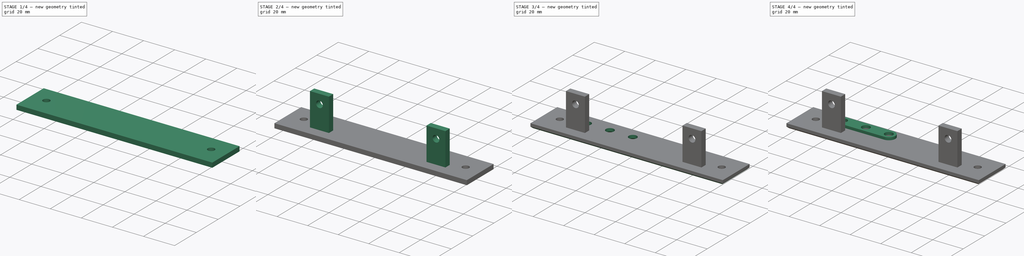
[diagram: build sequence overview — one tinted view per stage of 4, left to right]
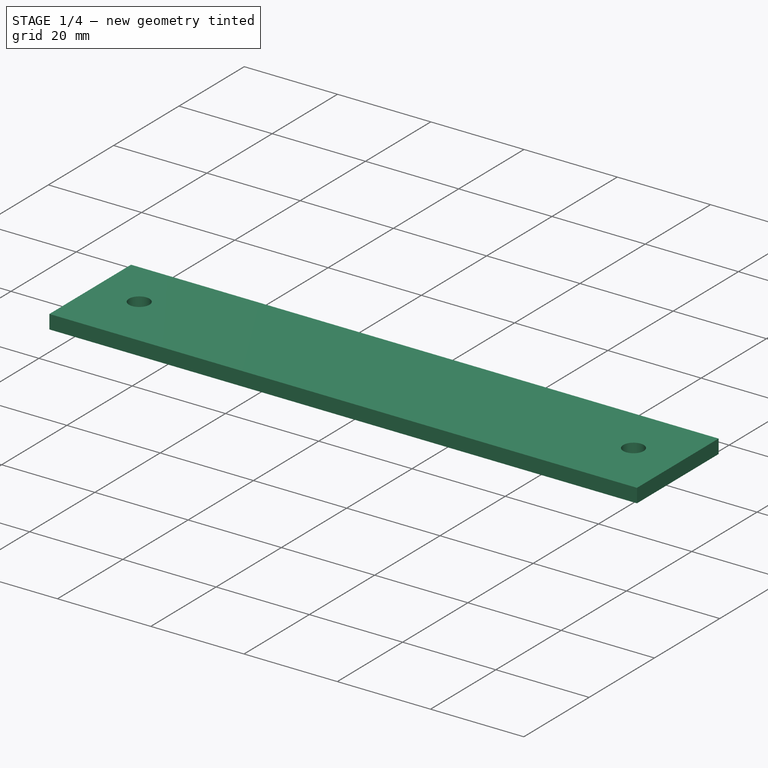
[diagram: stage 1 of 4 — iso view after this stage's code; geometry added in this stage tinted green]
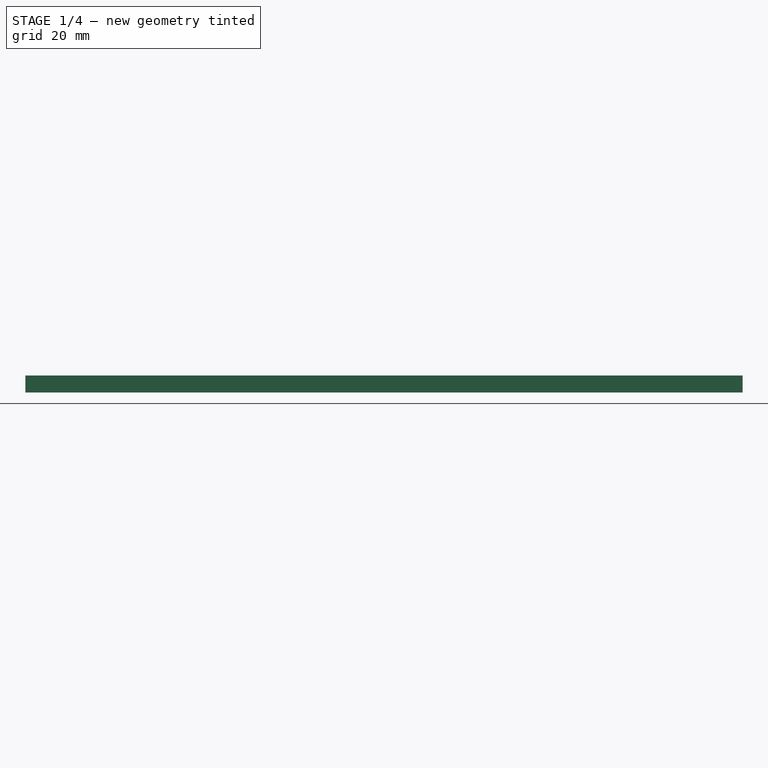
[diagram: stage 1 of 4 — front view after this stage's code; geometry added in this stage tinted green]
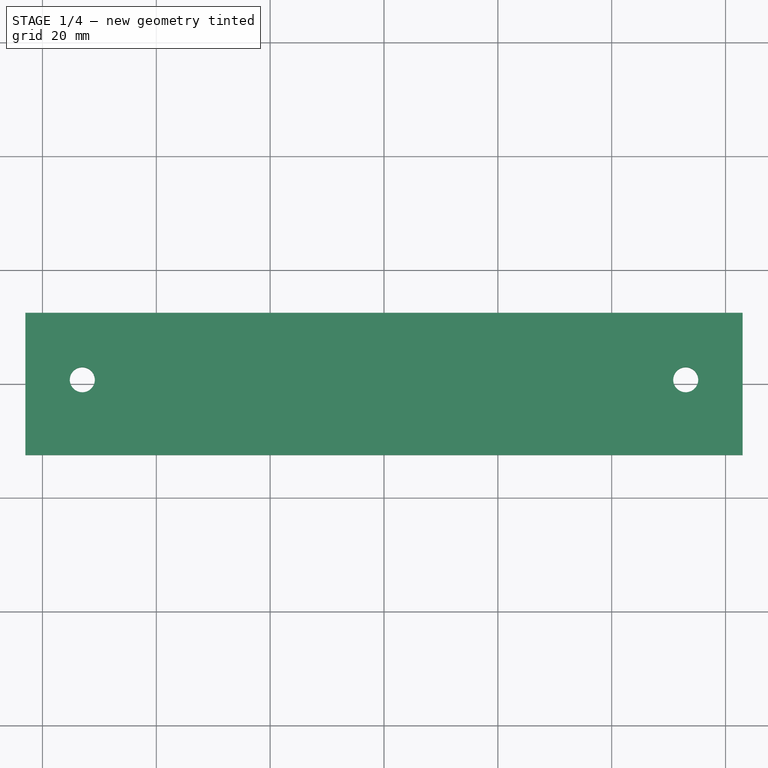
[diagram: stage 1 of 4 — top view after this stage's code; geometry added in this stage tinted green]
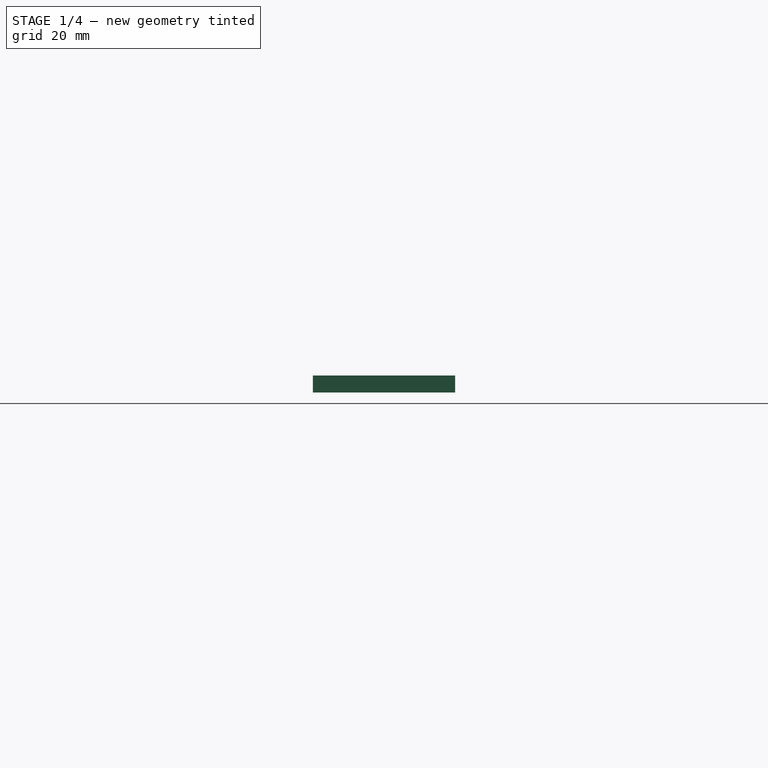
[diagram: stage 1 of 4 — right view after this stage's code; geometry added in this stage tinted green]
FCSTD DOCUMENT  (FreeCAD 0.17R13522 (Git))
Label: Status Plate
License: All rights reserved
LicenseURL: http://en.wikipedia.org/wiki/All_rights_reserved
objects: Sketcher::SketchObject×5, PartDesign::Pad×3, PartDesign::Pocket×2, PartDesign::Chamfer×2, PartDesign::Mirrored×1, PartDesign::Body×1, App::Part×1, Part::Part2DObjectPython×1, Part::Extrusion×1, Part::Cut×1
note: 22 computed .brp shape members not serialized (recipe doc carries the construction recipe); baked Part::Feature solids carry a one-line shape summary decoded from their .brp

FEATURE [Sketcher::SketchObject] Sketch  label="Faceplate"
  MapMode = 5
  Support = -> [XY_Plane001]
  sketch-geometry (6):
    g0: LineSegment StartX=-63 StartY=12.5 StartZ=0 EndX=63 EndY=12.5 EndZ=0
    g1: LineSegment StartX=63 StartY=12.5 StartZ=0 EndX=63 EndY=-12.5 EndZ=0
    g2: LineSegment StartX=63 StartY=-12.5 StartZ=0 EndX=-63 EndY=-12.5 EndZ=0
    g3: LineSegment StartX=-63 StartY=-12.5 StartZ=0 EndX=-63 EndY=12.5 EndZ=0
    g4: Circle CenterX=-53 CenterY=0.726 CenterZ=0 NormalX=0 NormalY=0 NormalZ=1 AngleXU=0 Radius=2.2
    g5: Circle CenterX=53 CenterY=0.726 CenterZ=0 NormalX=0 NormalY=0 NormalZ=1 AngleXU=0 Radius=2.2
  constraints (17):
    c: Coincident(g0,g1)
    c: Coincident(g1,g2)
    c: Coincident(g2,g3)
    c: Coincident(g3,g0)
    c: Horizontal(g0)
    c: Horizontal(g2)
    c: Vertical(g1)
    c: Vertical(g3)
    c: Distance(g3) = 25
    c: Distance(g0) = 126
    c: Symmetric(g0,g0,g-2)
    c: Symmetric(g0,g2,g-1)
    c: Equal(g5,g4)
    c: Radius(g4) = 2.2
    c: Symmetric(g4,g5,g-2)
    c: DistanceY(g0,g4) = -11.774
    c: DistanceX(g4,g0) = -10
FEATURE [PartDesign::Pad] Pad  label="Make Plate"
  Length = 3
  Length2 = 100
  Profile = -> Sketch
  Type = 0
FEATURE [PartDesign::Body] ChamferBody
  Group = -> [Sketch,Pad,Sketch001,Pad001,Sketch002,Pocket,Mirrored,Chamfer,Sketch003,Pocket001,Chamfer001,Sketch004,Pad002]
  Origin = -> Origin001
  Tip = -> Pad002
FEATURE [App::Part] Part
  Group = -> [ChamferBody]
  License = CC BY 3.0
  LicenseURL = http://creativecommons.org/licenses/by/3.0/
  Origin = -> Origin
FEATURE [Part::Part2DObjectPython] ShapeString  # Draft 2D object (typed FeaturePython)
  FontFile = <userpath>/USERROOT/Fonts/impact.ttf
  Placement = pos=(46.5,-8.5,0) rot=(0,1,0;3.14159rad)
  Size = 7.13
  String =  ToE 65C02   P    N     I
  Tracking = 0.75
FEATURE [Part::Extrusion] Extrude
  Base = -> ShapeString
  Dir = (0,0,-1)
  DirMode = 2
  FaceMakerClass = Part::FaceMakerBullseye
  LengthFwd = 1
  LengthRev = 0
  Placement = pos=(0,0,1) rot=(0,0,1;0rad)
  Solid = false
  Symmetric = false
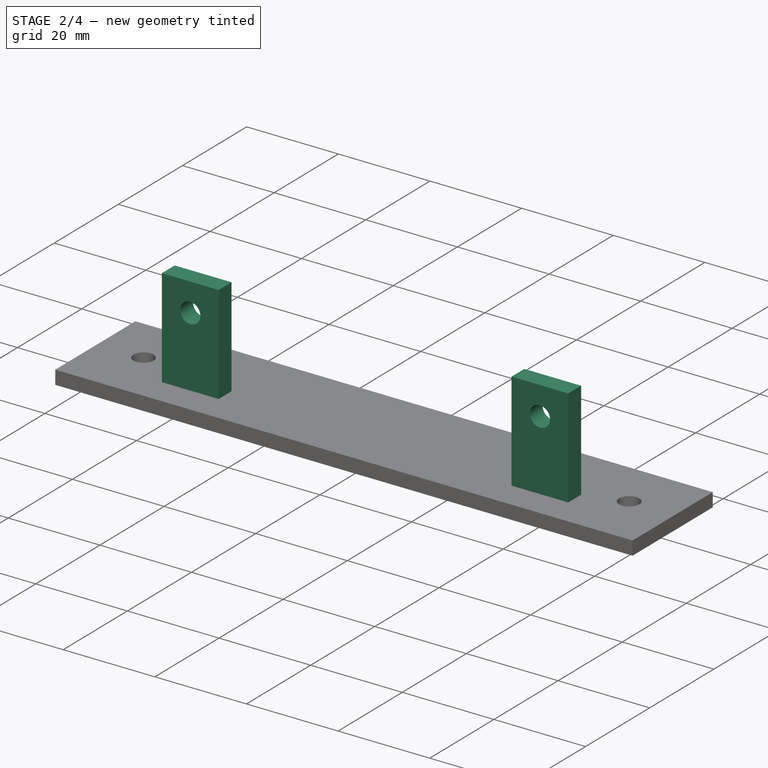
[diagram: stage 2 of 4 — iso view after this stage's code; geometry added in this stage tinted green]
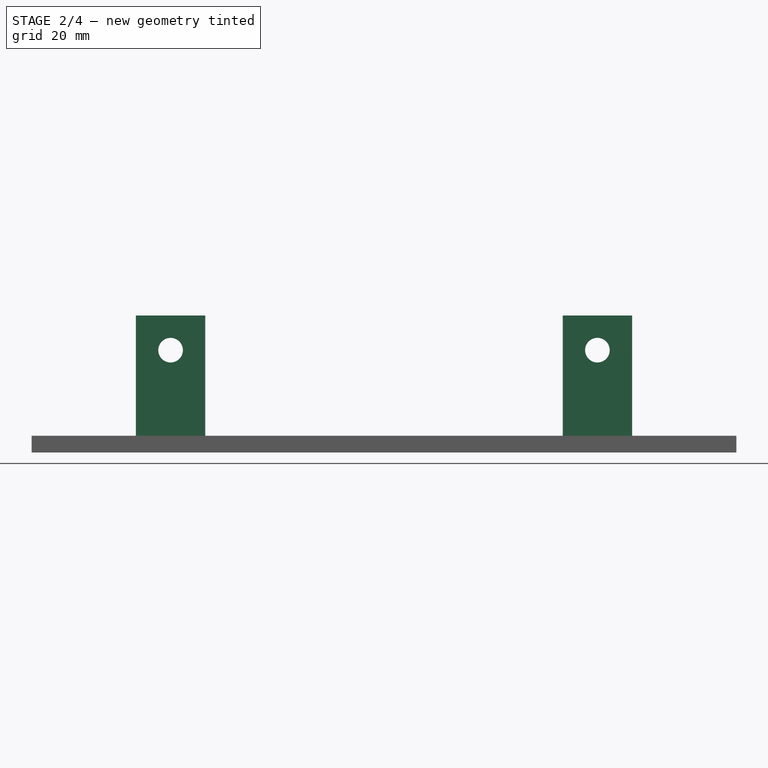
[diagram: stage 2 of 4 — front view after this stage's code; geometry added in this stage tinted green]
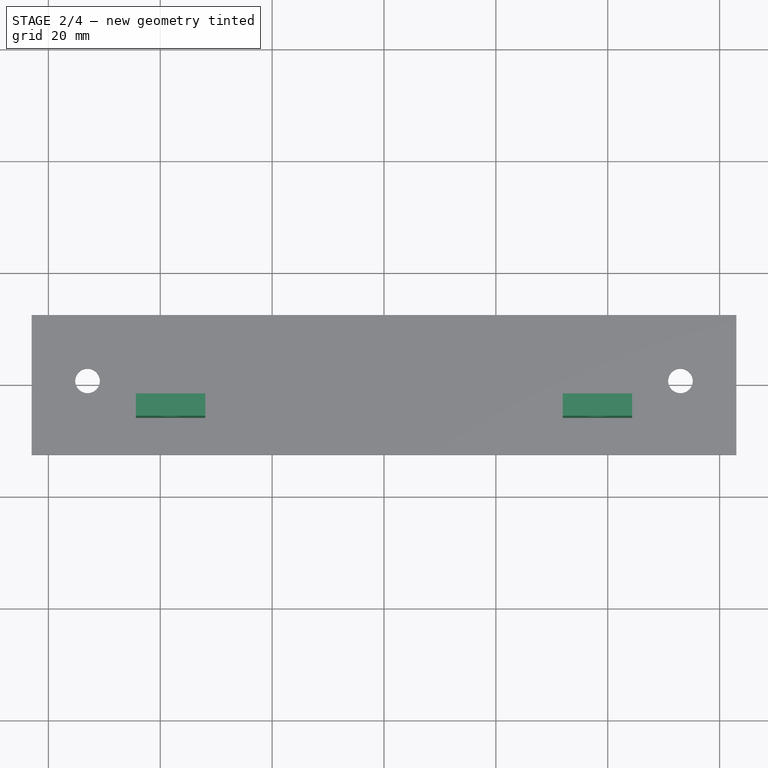
[diagram: stage 2 of 4 — top view after this stage's code; geometry added in this stage tinted green]
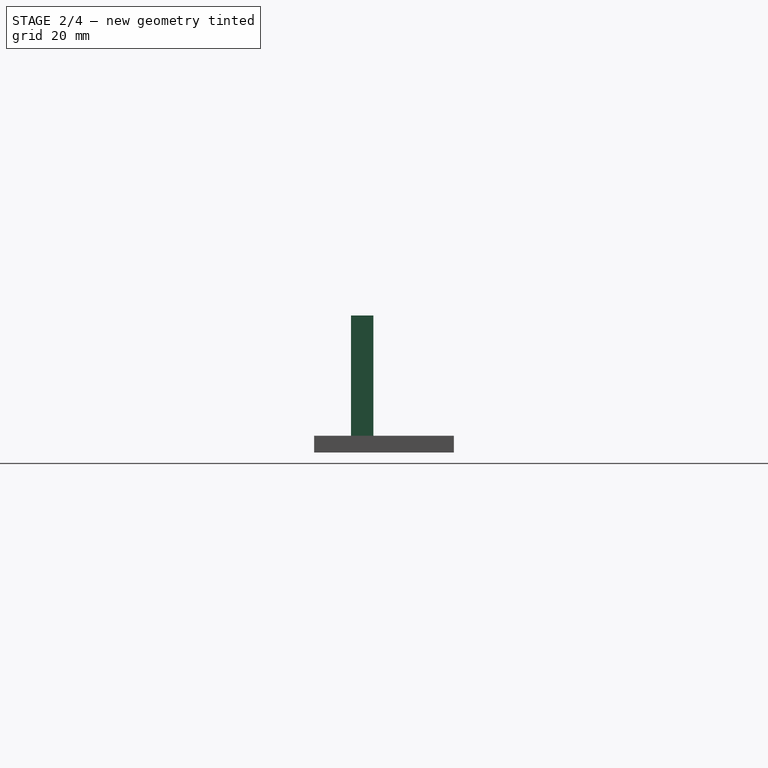
[diagram: stage 2 of 4 — right view after this stage's code; geometry added in this stage tinted green]
FEATURE [Sketcher::SketchObject] Sketch001  label="PCB Tabs"
  ExternalGeometry = -> [Pad]
  MapMode = 5
  Placement = pos=(0,0,3) rot=(0,0,1;0rad)
  Support = -> [Pad]
  sketch-geometry (10):
    g0: LineSegment StartX=-44.354 StartY=-1.892 StartZ=0 EndX=-31.954 EndY=-1.892 EndZ=0
    g1: LineSegment StartX=-31.954 StartY=-1.892 StartZ=0 EndX=-31.954 EndY=-5.892 EndZ=0
    g2: LineSegment StartX=-31.954 StartY=-5.892 StartZ=0 EndX=-44.354 EndY=-5.892 EndZ=0
    g3: LineSegment StartX=-44.354 StartY=-5.892 StartZ=0 EndX=-44.354 EndY=-1.892 EndZ=0
    g4: LineSegment StartX=31.954 StartY=-1.892 StartZ=0 EndX=44.354 EndY=-1.892 EndZ=0
    g5: LineSegment StartX=44.354 StartY=-1.892 StartZ=0 EndX=44.354 EndY=-5.892 EndZ=0
    g6: LineSegment StartX=44.354 StartY=-5.892 StartZ=0 EndX=31.954 EndY=-5.892 EndZ=0
    g7: LineSegment StartX=31.954 StartY=-5.892 StartZ=0 EndX=31.954 EndY=-1.892 EndZ=0
    g8: LineSegment [constr] StartX=-38.154 StartY=-1.892 StartZ=0 EndX=-38.154 EndY=-5.892 EndZ=0
    g9: LineSegment [constr] StartX=38.154 StartY=-1.892 StartZ=0 EndX=38.154 EndY=-5.892 EndZ=0
  constraints (31):
    c: Coincident(g0,g1)
    c: Coincident(g1,g2)
    c: Coincident(g2,g3)
    c: Coincident(g3,g0)
    c: Horizontal(g0)
    c: Horizontal(g2)
    c: Vertical(g1)
    c: Vertical(g3)
    c: Distance(g0) = 12.4
    c: Distance(g1) = 4
    c: Coincident(g4,g5)
    c: Coincident(g5,g6)
    c: Coincident(g6,g7)
    c: Coincident(g7,g4)
    c: Horizontal(g4)
    c: Horizontal(g6)
    c: Vertical(g5)
    c: Vertical(g7)
    c: Equal(g4,g0)
    c: Equal(g7,g1)
    c: Symmetric(g0,g4,g-2)
    c: Vertical(g8)
    c: PointOnObject(g8,g0)
    c: PointOnObject(g8,g2)
    c: Symmetric(g0,g0,g8)
    c: Vertical(g9)
    c: PointOnObject(g9,g4)
    c: PointOnObject(g9,g6)
    c: Symmetric(g4,g4,g9)
    c: Distance(g9,g8) = 76.308
    c: DistanceY(g-3,g2) = -18.392
FEATURE [PartDesign::Pad] Pad001  label="Make Tabs"
  BaseFeature = -> Pad
  Length = 21.497
  Length2 = 100
  Profile = -> Sketch001
  Type = 0
FEATURE [Sketcher::SketchObject] Sketch002  label="Holes for PCB Mounting"
  ExternalGeometry = -> [Pad001]
  MapMode = 5
  Placement = pos=(0,-5.892,0) rot=(1,0,0;1.5708rad)
  Support = -> [Pad001]
  sketch-geometry (2):
    g0: Circle CenterX=-38.154 CenterY=18.297 CenterZ=0 NormalX=0 NormalY=0 NormalZ=1 AngleXU=0 Radius=2.2
    g1: LineSegment [constr] StartX=-38.154 StartY=24.497 StartZ=0 EndX=-38.154 EndY=20.497 EndZ=0
  constraints (6):
    c: Radius(g0) = 2.2
    c: Vertical(g1)
    c: Perpendicular(g1,g0) = 4.71239
    c: PointOnObject(g1,g-3)
    c: Symmetric(g-3,g-3,g1)
    c: DistanceY(g1,g1) = 4
FEATURE [PartDesign::Pocket] Pocket  label="Add Hole"
  BaseFeature = -> Pad001
  Length = 5
  Length2 = 100
  Profile = -> Sketch002
  Type = 2
FEATURE [PartDesign::Mirrored] Mirrored  label="Add second hole too"
  BaseFeature = -> Pocket
  MirrorPlane = -> Sketch002 [V_Axis]
  Originals = -> [Pocket]
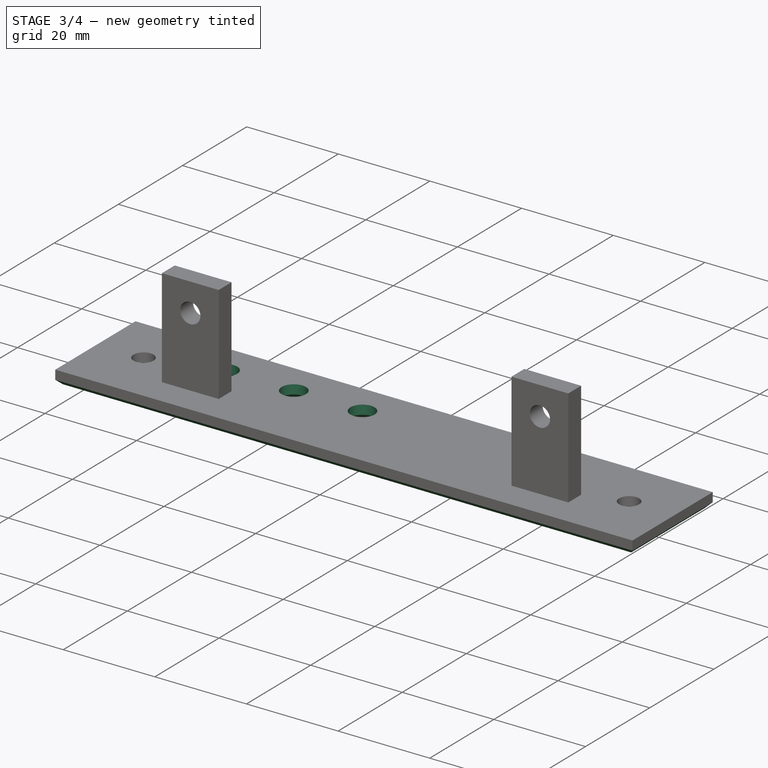
[diagram: stage 3 of 4 — iso view after this stage's code; geometry added in this stage tinted green]
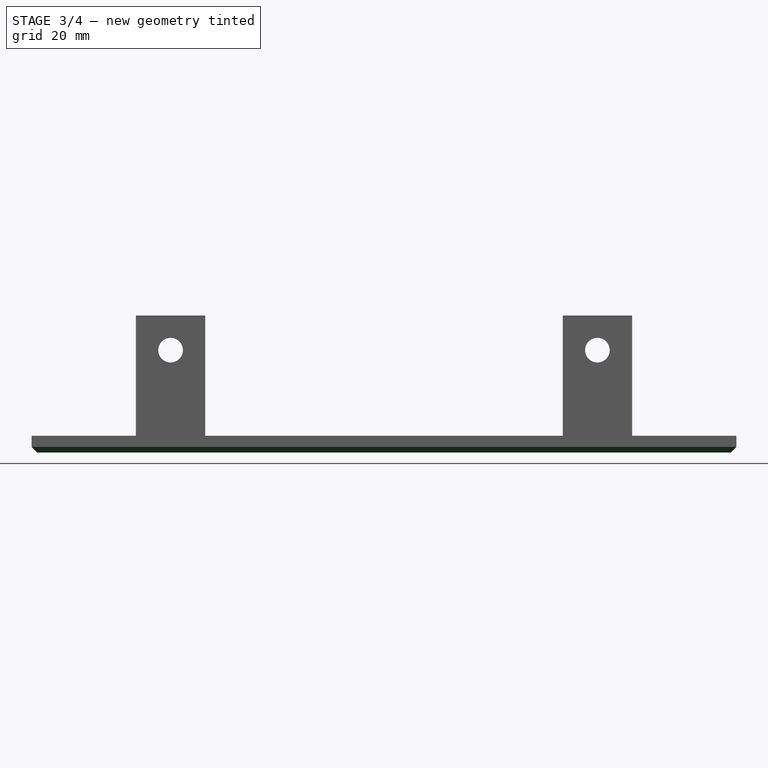
[diagram: stage 3 of 4 — front view after this stage's code; geometry added in this stage tinted green]
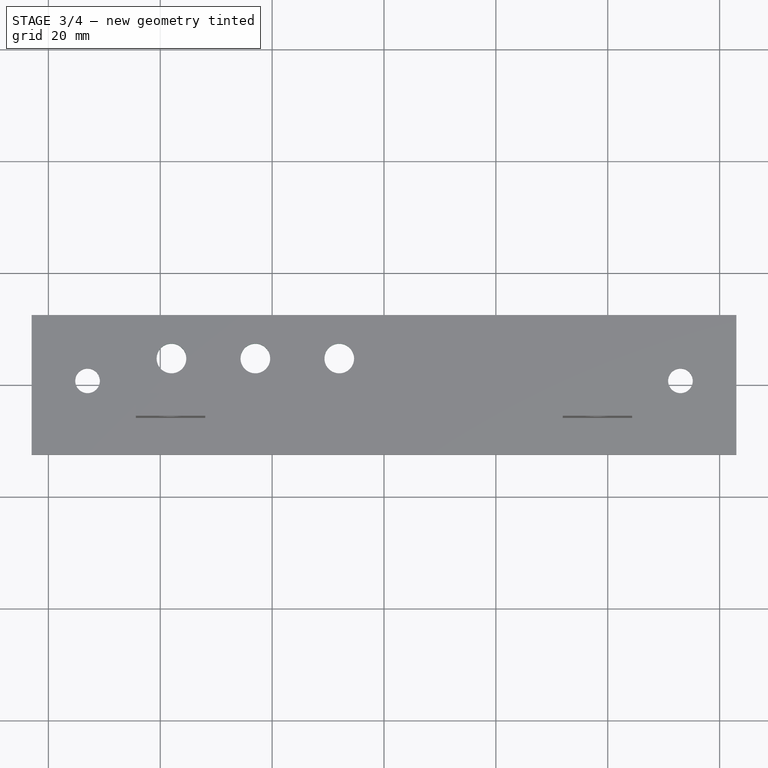
[diagram: stage 3 of 4 — top view after this stage's code; geometry added in this stage tinted green]
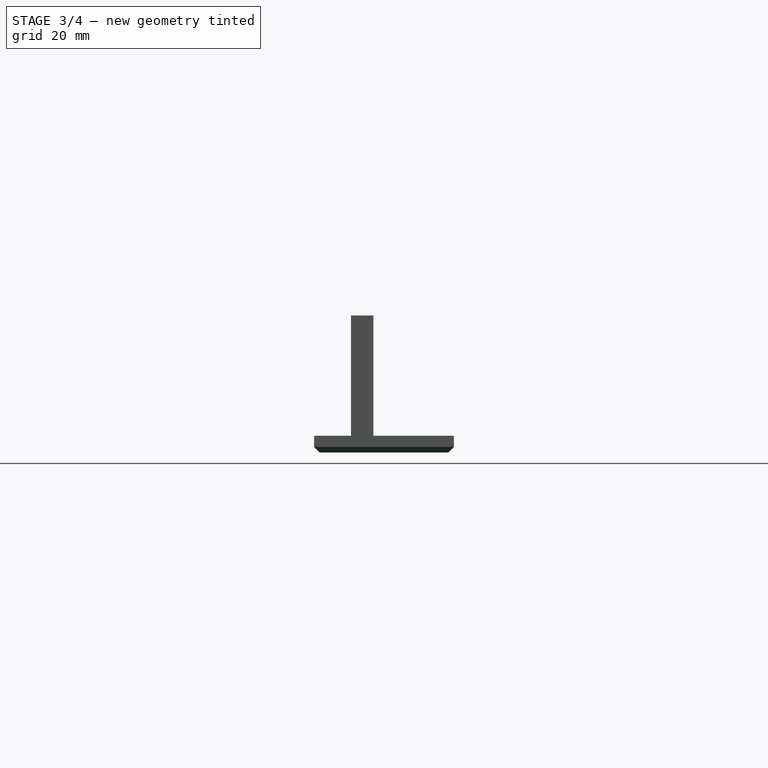
[diagram: stage 3 of 4 — right view after this stage's code; geometry added in this stage tinted green]
FEATURE [PartDesign::Chamfer] Chamfer  label="Finish Viewing side"
  Base = -> Mirrored [Edge3,Edge9,Edge11,Edge6,Edge12,Edge13]
  BaseFeature = -> Mirrored
  Size = 1
FEATURE [Sketcher::SketchObject] Sketch003
  ExternalGeometry = -> [Chamfer]
  MapMode = 5
  Placement = pos=(0,0,0) rot=(1,0,0;3.14159rad)
  Support = -> [Chamfer]
  sketch-geometry (5):
    g0: Circle CenterX=-38 CenterY=-4.726 CenterZ=0 NormalX=0 NormalY=0 NormalZ=1 AngleXU=0 Radius=2.65
    g1: Circle CenterX=-23 CenterY=-4.726 CenterZ=0 NormalX=0 NormalY=0 NormalZ=1 AngleXU=0 Radius=2.65
    g2: Circle CenterX=-8 CenterY=-4.726 CenterZ=0 NormalX=0 NormalY=0 NormalZ=1 AngleXU=0 Radius=2.65
    g3: LineSegment [constr] StartX=-38 StartY=-4.726 StartZ=0 EndX=-23 EndY=-4.726 EndZ=0
    g4: LineSegment [constr] StartX=-23 StartY=-4.726 StartZ=0 EndX=-8 EndY=-4.726 EndZ=0
  constraints (13):
    c: Equal(g2,g1)
    c: Equal(g2,g0)
    c: Coincident(g3,g4)
    c: Horizontal(g4)
    c: Horizontal(g3)
    c: Equal(g4,g3)
    c: Coincident(g1,g3)
    c: Coincident(g2,g4)
    c: Distance(g4) = 15
    c: Coincident(g0,g3)
    c: DistanceY(g0,g-3) = 4
    c: DistanceX(g-3,g0) = 15
    c: Radius(g2) = 2.65
FEATURE [PartDesign::Pocket] Pocket001
  BaseFeature = -> Chamfer
  Length = 5
  Length2 = 100
  Profile = -> Sketch003
  Type = 1
FEATURE [PartDesign::Chamfer] Chamfer001
  Base = -> Pocket001 [Edge33,Edge35,Edge34]
  BaseFeature = -> Pocket001
  Size = 1
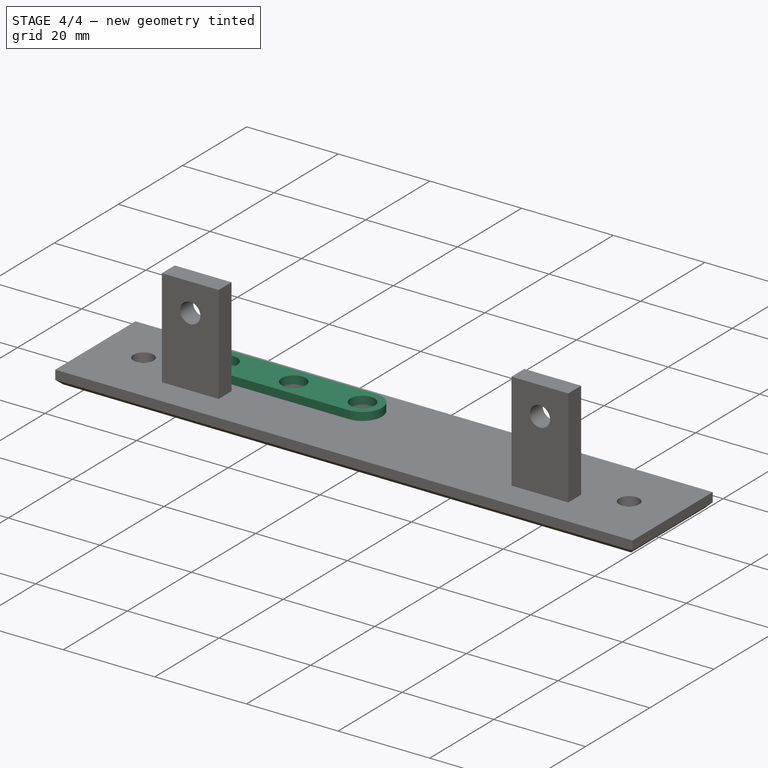
[diagram: stage 4 of 4 — iso view after this stage's code; geometry added in this stage tinted green]
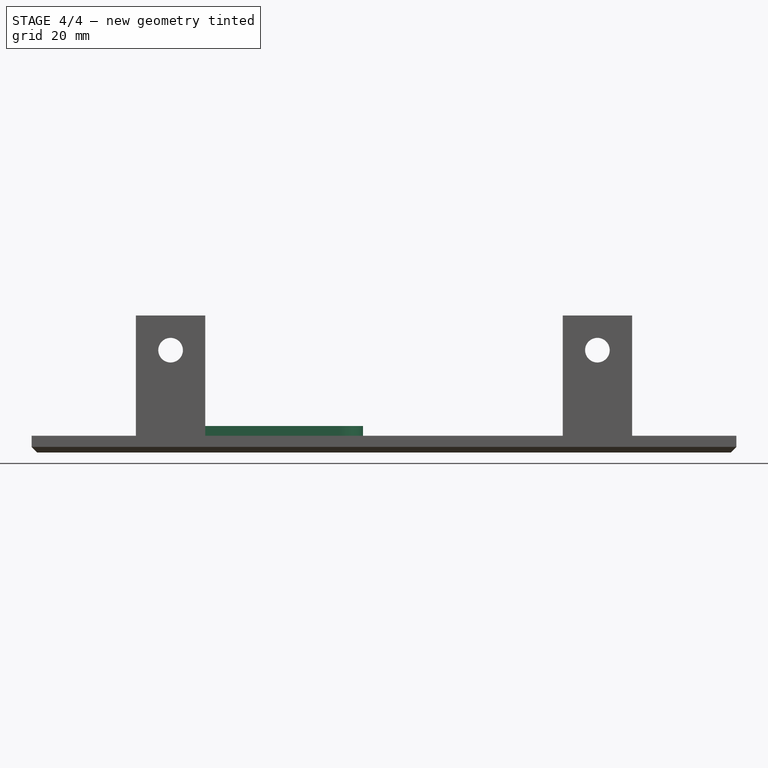
[diagram: stage 4 of 4 — front view after this stage's code; geometry added in this stage tinted green]
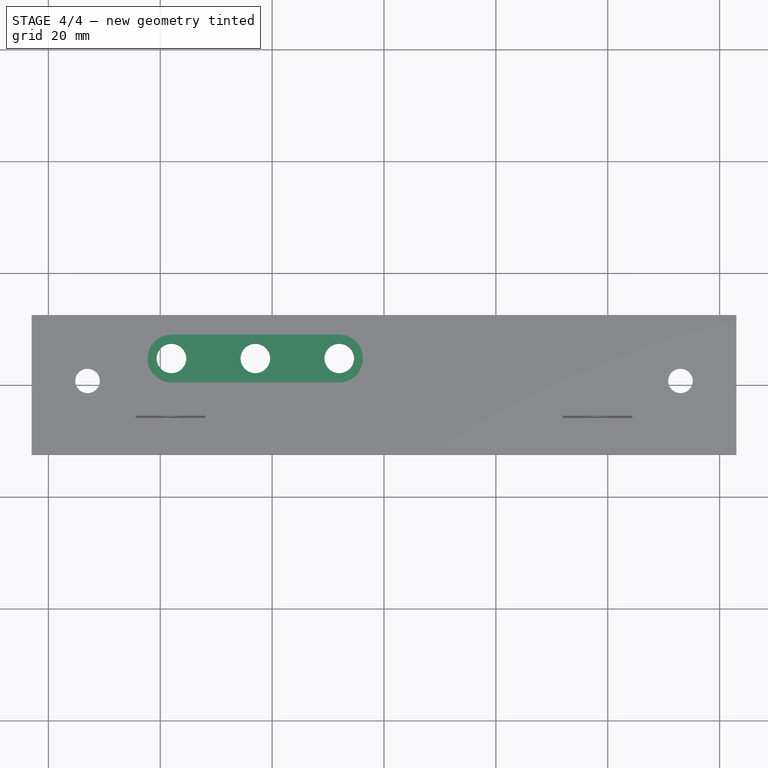
[diagram: stage 4 of 4 — top view after this stage's code; geometry added in this stage tinted green]
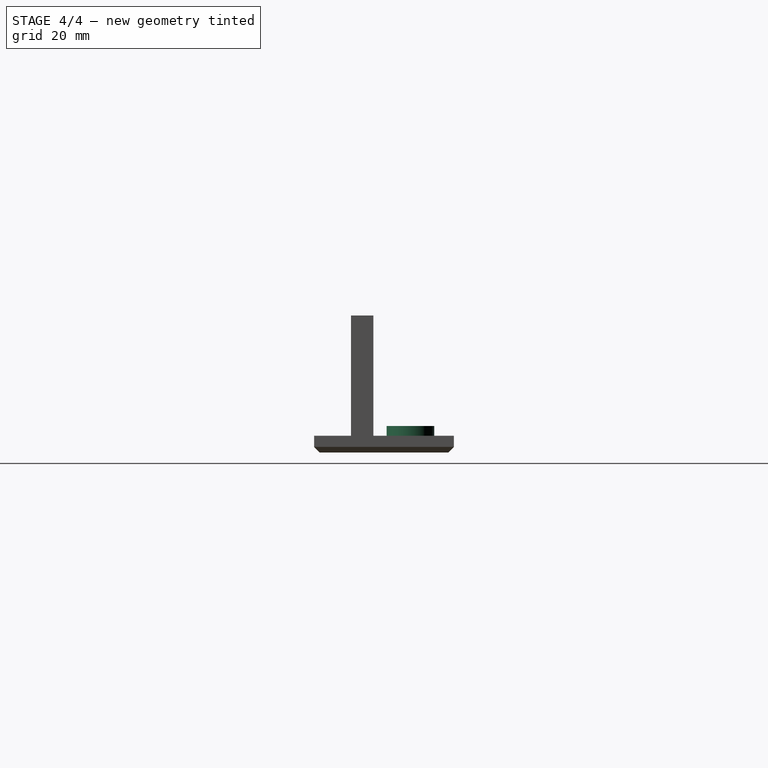
[diagram: stage 4 of 4 — right view after this stage's code; geometry added in this stage tinted green]
FEATURE [Sketcher::SketchObject] Sketch004
  ExternalGeometry = -> [Chamfer001]
  MapMode = 5
  Placement = pos=(0,0,3) rot=(0,0,1;0rad)
  Support = -> [Chamfer001]
  sketch-geometry (8):
    g0: Circle CenterX=-38 CenterY=4.726 CenterZ=0 NormalX=0 NormalY=0 NormalZ=1 AngleXU=0 Radius=2.65
    g1: Circle CenterX=-23 CenterY=4.726 CenterZ=0 NormalX=0 NormalY=0 NormalZ=1 AngleXU=0 Radius=2.65
    g2: Circle CenterX=-8 CenterY=4.726 CenterZ=0 NormalX=0 NormalY=0 NormalZ=1 AngleXU=0 Radius=2.65
    g3: ArcOfCircle CenterX=-38 CenterY=4.726 CenterZ=0 NormalX=0 NormalY=0 NormalZ=1 AngleXU=0 Radius=4.25 StartAngle=1.5708 EndAngle=4.71239
    g4: ArcOfCircle CenterX=-8 CenterY=4.726 CenterZ=0 NormalX=0 NormalY=0 NormalZ=1 AngleXU=0 Radius=4.25 StartAngle=4.71239 EndAngle=7.85398
    g5: LineSegment StartX=-38 StartY=0.476 StartZ=0 EndX=-8 EndY=0.476 EndZ=0
    g6: LineSegment StartX=-38 StartY=8.976 StartZ=0 EndX=-8 EndY=8.976 EndZ=0
    g7: LineSegment [constr] StartX=-38 StartY=7.376 StartZ=0 EndX=-38 EndY=8.976 EndZ=0
  constraints (18):
    c: Coincident(g0,g-3)
    c: Coincident(g1,g-4)
    c: Coincident(g2,g-5)
    c: Equal(g-3,g0)
    c: Equal(g0,g1)
    c: Equal(g1,g2)
    c: Tangent(g3,g6) = 1.5708
    c: Tangent(g3,g5) = -1.5708
    c: Tangent(g5,g4) = -1.5708
    c: Tangent(g6,g4) = 1.5708
    c: Horizontal(g5)
    c: Equal(g3,g4)
    c: Coincident(g0,g3)
    c: Coincident(g2,g4)
    c: Vertical(g7)
    c: PointOnObject(g7,g0)
    c: Coincident(g7,g3)
    c: Distance(g7) = 1.6
FEATURE [PartDesign::Pad] Pad002
  BaseFeature = -> Chamfer001
  Length = 1.75
  Length2 = 100
  Profile = -> Sketch004
  Type = 0
FEATURE [Part::Cut] Cut
  Base = -> Pad002
  Tool = -> Extrude
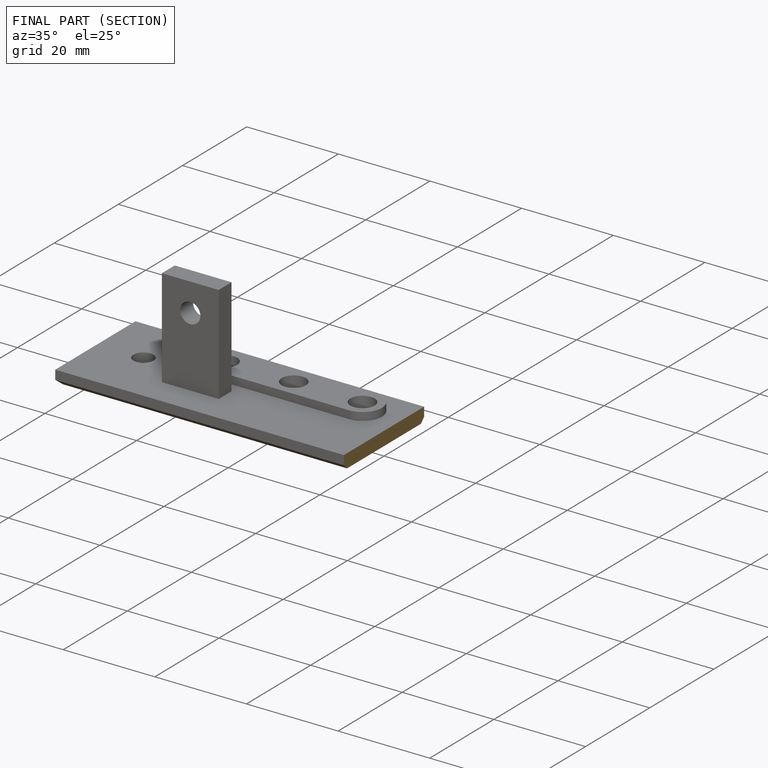
[diagram: finished part — half-section view (interior)]
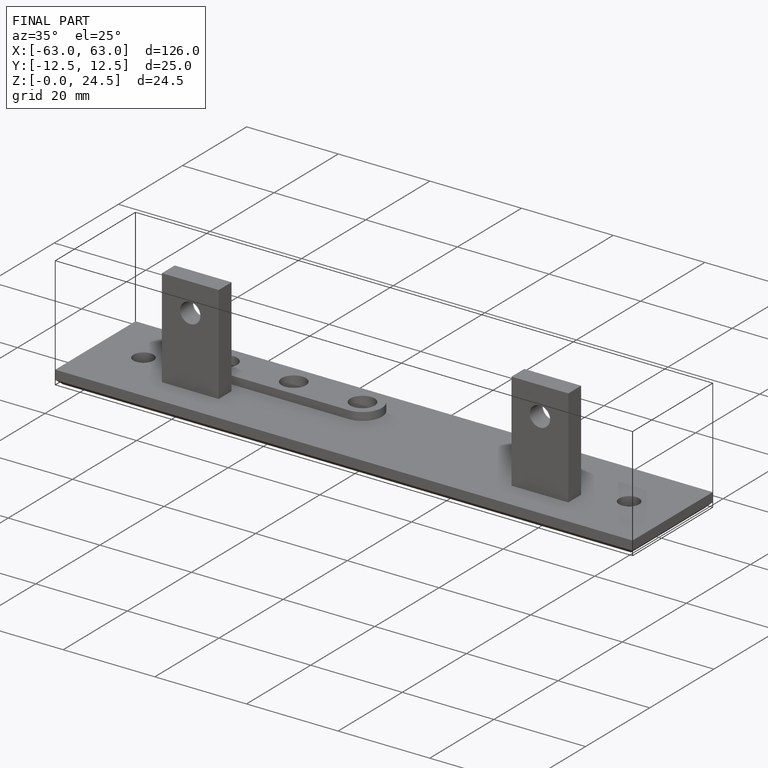
[diagram: finished part — iso view with bounding-box wireframe]
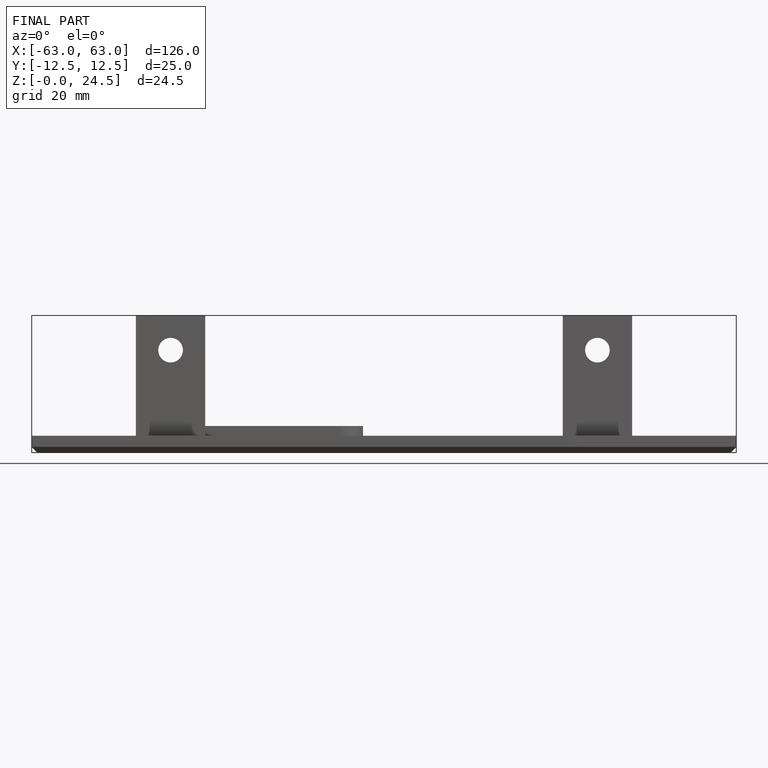
[diagram: finished part — front view with bounding-box wireframe]
